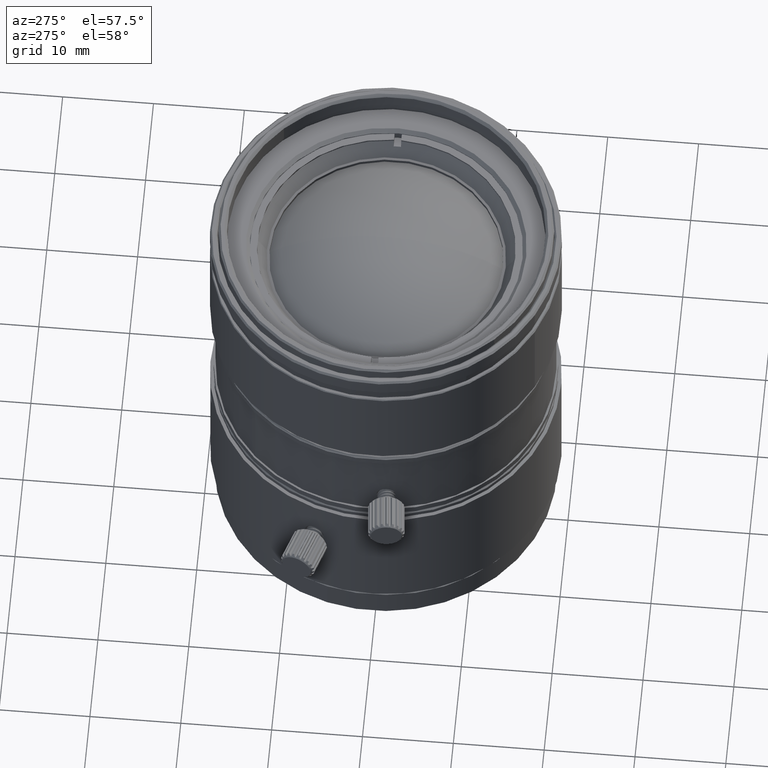
[diagram: clean part render]
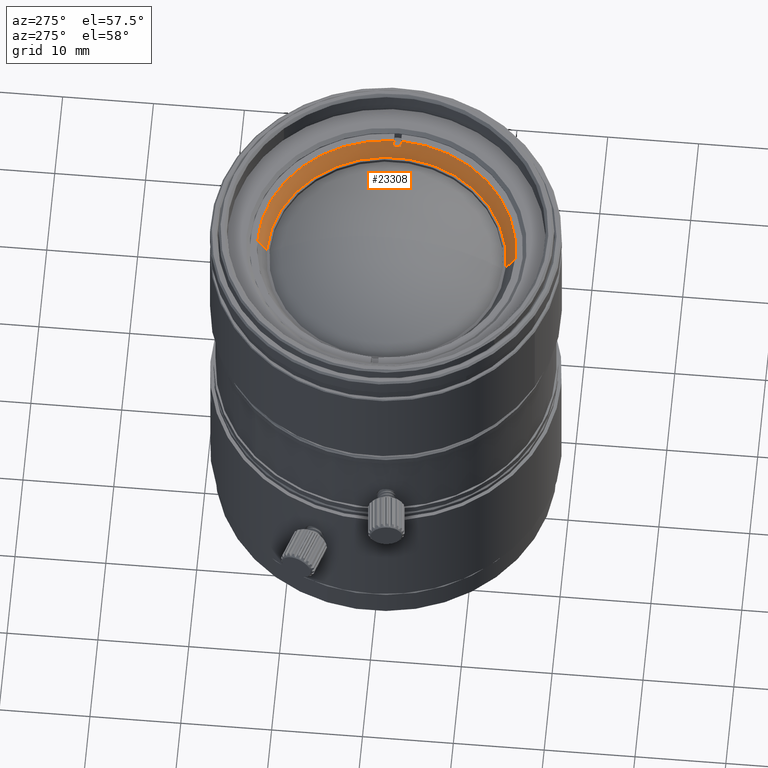
[diagram: same view with one face highlighted and labeled with its STEP entity id]
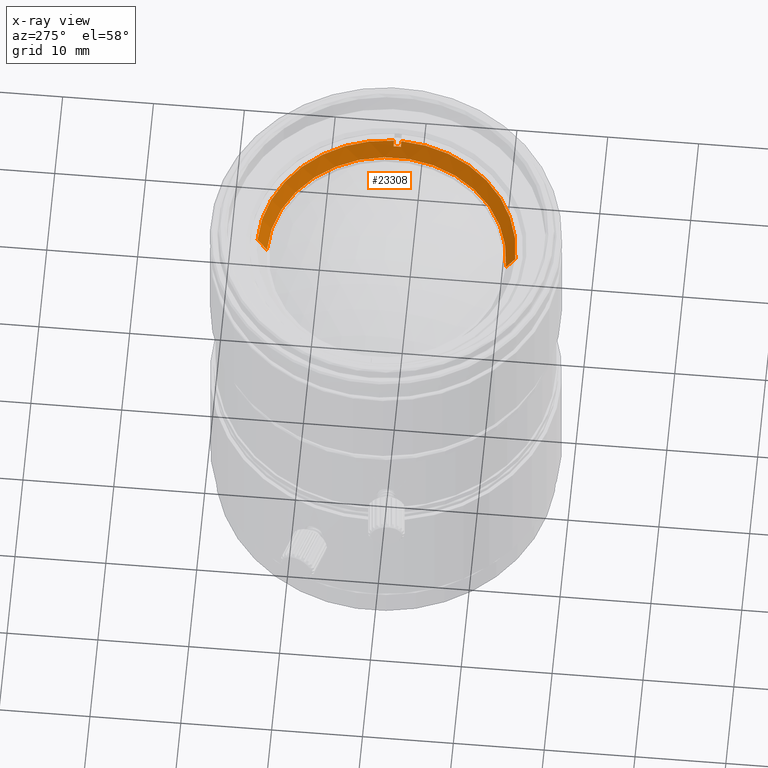
[diagram: x-ray of the same camera — body ghosted, the highlighted face saturated]
A machine part, auxiliary view. The second image highlights one B-rep face of the part: STEP entity #23308.
The next image is the same camera in x-ray: the body ghosted, the highlighted face saturated — about 0% of this face is hidden behind the body in this view.
In plain terms, the highlighted conical surface has half-angle 30.008 deg.
Its self-contained STEP definition (entity closure, byte-faithful):
#238 = CARTESIAN_POINT ( 'NONE',  ( 0.000000000000000000, 14.18799999928211442, 42.82900000000000063 ) ) ;
#321 = ORIENTED_EDGE ( 'NONE', *, *, #39146, .F. ) ;
#558 = CARTESIAN_POINT ( 'NONE',  ( 13.83569321388999995, -0.4000000000000000222, 42.22899999999999920 ) ) ;
#661 = CIRCLE ( 'NONE', #25113, 13.14899999999999913 ) ;
#1042 = DIRECTION ( 'NONE',  ( 0.9995823466236514188, 0.02889865599563858425, 0.000000000000000000 ) ) ;
#1675 = LINE ( 'NONE', #4188, #23614 ) ;
#2273 = ORIENTED_EDGE ( 'NONE', *, *, #38545, .T. ) ;
#2579 = DIRECTION ( 'NONE',  ( 0.000000000000000000, 0.000000000000000000, 1.000000000000000000 ) ) ;
#3575 = ORIENTED_EDGE ( 'NONE', *, *, #33936, .F. ) ;
#3661 = CARTESIAN_POINT ( 'NONE',  ( 0.000000000000000000, -14.18799999999999883, 42.82900000000000063 ) ) ;
#3799 = DIRECTION ( 'NONE',  ( 0.000000000000000000, 0.000000000000000000, 1.000000000000000000 ) ) ;
#4188 = CARTESIAN_POINT ( 'NONE',  ( 0.000000000000000000, 13.66849999999999987, 41.92950000000000443 ) ) ;
#4407 = DIRECTION ( 'NONE',  ( 0.000000000000000000, 0.5001252177614151639, 0.8659530972050951680 ) ) ;
#4734 = DIRECTION ( 'NONE',  ( 0.000000000000000000, 8.215714815559919577E-17, 1.000000000000000000 ) ) ;
#5784 = CARTESIAN_POINT ( 'NONE',  ( -1.673908477368865380E-15, -13.14899999999999913, 41.02999999999999403 ) ) ;
#6201 = CIRCLE ( 'NONE', #40039, 14.18799999999999883 ) ;
#7230 = LINE ( 'NONE', #21184, #26376 ) ;
#8129 = FACE_OUTER_BOUND ( 'NONE', #16788, .T. ) ;
#8269 = VERTEX_POINT ( 'NONE', #41583 ) ;
#11067 = CARTESIAN_POINT ( 'NONE',  ( 14.00878076229750135, -0.4000000000000000222, 42.52857271863930322 ) ) ;
#12635 = AXIS2_PLACEMENT_3D ( 'NONE', #21856, #4734, #18461 ) ;
#14203 = VECTOR ( 'NONE', #21640, 1000.000000000000114 ) ;
#14642 = VERTEX_POINT ( 'NONE', #5784 ) ;
#14653 = AXIS2_PLACEMENT_3D ( 'NONE', #14804, #15025, #1042 ) ;
#14804 = CARTESIAN_POINT ( 'NONE',  ( 0.000000000000000000, 0.000000000000000000, 42.22899999999999920 ) ) ;
#15025 = DIRECTION ( 'NONE',  ( 0.000000000000000000, 0.000000000000000000, -1.000000000000000000 ) ) ;
#15882 = CARTESIAN_POINT ( 'NONE',  ( 0.000000000000000000, 0.000000000000000000, 41.02999999999999403 ) ) ;
#16133 = CARTESIAN_POINT ( 'NONE',  ( 0.000000000000000000, 13.14899999999999913, 41.02999999999999403 ) ) ;
#16788 = EDGE_LOOP ( 'NONE', ( #21615, #28267, #2273, #26650, #321, #23536, #22659, #3575 ) ) ;
#18082 = VERTEX_POINT ( 'NONE', #3661 ) ;
#18461 = DIRECTION ( 'NONE',  ( 0.000000000000000000, 1.000000000000000000, 0.000000000000000000 ) ) ;
#19025 = DIRECTION ( 'NONE',  ( 0.000000000000000000, 0.000000000000000000, 1.000000000000000000 ) ) ;
#19249 = CARTESIAN_POINT ( 'NONE',  ( 0.000000000000000000, 0.000000000000000000, 42.82900000000000063 ) ) ;
#20964 = LINE ( 'NONE', #11067, #14203 ) ;
#21184 = CARTESIAN_POINT ( 'NONE',  ( 14.00877885349500040, 0.4000000000000000222, 42.52856941494499665 ) ) ;
#21585 = EDGE_CURVE ( 'NONE', #14642, #18082, #42315, .T. ) ;
#21615 = ORIENTED_EDGE ( 'NONE', *, *, #35406, .F. ) ;
#21640 = DIRECTION ( 'NONE',  ( -0.5002743291576571272, 0.000000000000000000, -0.8658669618283492131 ) ) ;
#21856 = CARTESIAN_POINT ( 'NONE',  ( 0.000000000000000000, 0.000000000000000000, 41.92950000000000443 ) ) ;
#21969 = CONICAL_SURFACE ( 'NONE', #12635, 13.66849999999999987, 0.5237433706508649589 ) ;
#22659 = ORIENTED_EDGE ( 'NONE', *, *, #24848, .T. ) ;
#23308 = ADVANCED_FACE ( 'NONE', ( #8129 ), #21969, .F. ) ;
#23536 = ORIENTED_EDGE ( 'NONE', *, *, #28681, .T. ) ;
#23614 = VECTOR ( 'NONE', #4407, 1000.000000000000227 ) ;
#23962 = CIRCLE ( 'NONE', #36908, 14.18799999999999706 ) ;
#24131 = VERTEX_POINT ( 'NONE', #238 ) ;
#24848 = EDGE_CURVE ( 'NONE', #42322, #24131, #6201, .T. ) ;
#25095 = VERTEX_POINT ( 'NONE', #558 ) ;
#25113 = AXIS2_PLACEMENT_3D ( 'NONE', #15882, #2579, #32785 ) ;
#26147 = CIRCLE ( 'NONE', #14653, 13.84147415231000799 ) ;
#26376 = VECTOR ( 'NONE', #34720, 1000.000000000000114 ) ;
#26650 = ORIENTED_EDGE ( 'NONE', *, *, #29769, .T. ) ;
#28267 = ORIENTED_EDGE ( 'NONE', *, *, #21585, .T. ) ;
#28681 = EDGE_CURVE ( 'NONE', #28743, #42322, #7230, .T. ) ;
#28743 = VERTEX_POINT ( 'NONE', #42137 ) ;
#28792 = CARTESIAN_POINT ( 'NONE',  ( -1.673908477414559753E-15, -13.66849999999999987, 41.92950000000000443 ) ) ;
#29769 = EDGE_CURVE ( 'NONE', #8269, #25095, #20964, .T. ) ;
#32524 = CARTESIAN_POINT ( 'NONE',  ( 14.18236031131999830, 0.4000000000000000222, 42.82900000000000063 ) ) ;
#32704 = VERTEX_POINT ( 'NONE', #16133 ) ;
#32785 = DIRECTION ( 'NONE',  ( 0.000000000000000000, 1.000000000000000000, 0.000000000000000000 ) ) ;
#32793 = DIRECTION ( 'NONE',  ( 0.000000000000000000, 1.000000000000000000, 0.000000000000000000 ) ) ;
#33936 = EDGE_CURVE ( 'NONE', #32704, #24131, #1675, .T. ) ;
#34679 = CARTESIAN_POINT ( 'NONE',  ( 0.000000000000000000, 0.000000000000000000, 42.82900000000000063 ) ) ;
#34720 = DIRECTION ( 'NONE',  ( 0.5002818922706318006, 0.000000000000000000, 0.8658625920237668083 ) ) ;
#35406 = EDGE_CURVE ( 'NONE', #14642, #32704, #661, .T. ) ;
#36908 = AXIS2_PLACEMENT_3D ( 'NONE', #34679, #3799, #44150 ) ;
#38545 = EDGE_CURVE ( 'NONE', #18082, #8269, #23962, .T. ) ;
#39146 = EDGE_CURVE ( 'NONE', #28743, #25095, #26147, .T. ) ;
#40039 = AXIS2_PLACEMENT_3D ( 'NONE', #19249, #19025, #32793 ) ;
#41583 = CARTESIAN_POINT ( 'NONE',  ( 14.18236031131999830, -0.4000000000000000222, 42.82900000000000063 ) ) ;
#42137 = CARTESIAN_POINT ( 'NONE',  ( 13.83569321388999995, 0.4000000000000000222, 42.22899999999999920 ) ) ;
#42315 = LINE ( 'NONE', #28792, #43489 ) ;
#42322 = VERTEX_POINT ( 'NONE', #32524 ) ;
#42534 = DIRECTION ( 'NONE',  ( -6.124767471043899921E-17, -0.5001252177614150529, 0.8659530972050952791 ) ) ;
#43489 = VECTOR ( 'NONE', #42534, 1000.000000000000114 ) ;
#44150 = DIRECTION ( 'NONE',  ( -0.9996025029120600980, -0.02819283901888890859, 0.000000000000000000 ) ) ;